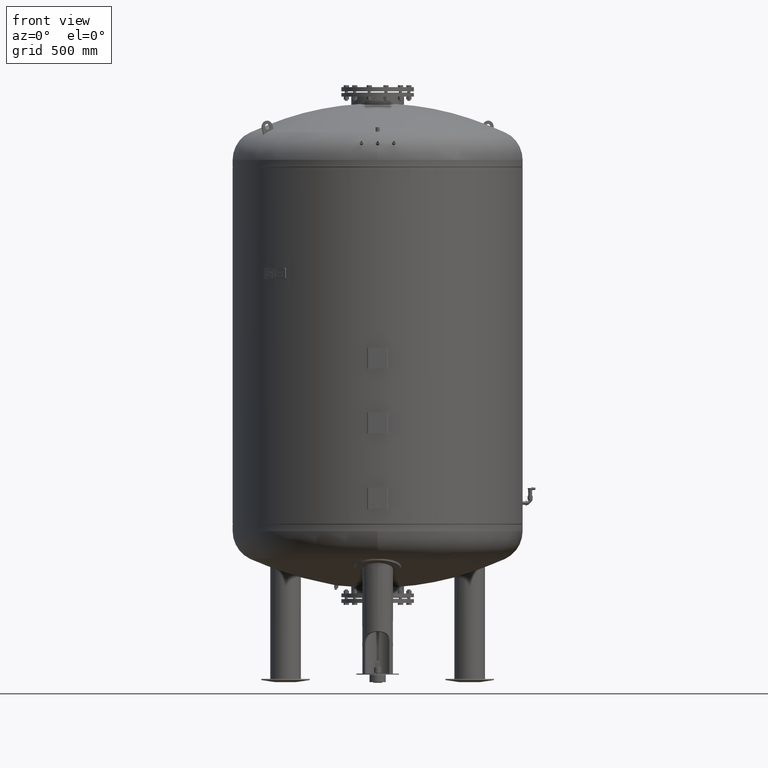
[diagram: clean part render]
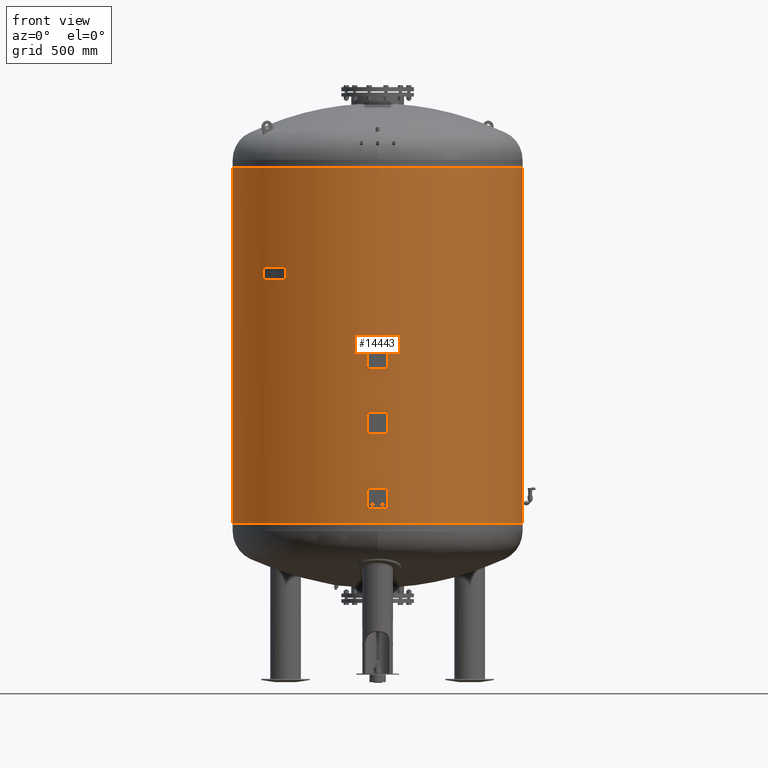
[diagram: same view with one face highlighted and labeled with its STEP entity id]
A machine part, front view. The second image highlights one B-rep face of the part: STEP entity #14443.
In plain terms, the highlighted cylindrical surface (partial cylindrical patch) has radius 750 mm, axis along (0, 0, 1).
Its self-contained STEP definition (entity closure, byte-faithful):
#14402=CARTESIAN_POINT('',(8.316550E-015,0.0,2212.250000000000000));
#14403=DIRECTION('',(1.828818E-017,0.0,1.0));
#14404=DIRECTION('',(1.0,0.0,0.0));
#14405=AXIS2_PLACEMENT_3D('',#14402,#14403,#14404);
#14406=CYLINDRICAL_SURFACE('',#14405,750.000000000000570);
#14407=CARTESIAN_POINT('',(750.000000000000910,0.0,2667.0));
#14408=VERTEX_POINT('',#14407);
#14409=CARTESIAN_POINT('',(749.999999999999890,0.0,822.0));
#14410=VERTEX_POINT('',#14409);
#14411=CARTESIAN_POINT('',(750.000000000000910,0.0,2667.0));
#14412=DIRECTION('',(0.0,0.0,-1.0));
#14413=VECTOR('',#14412,1845.0);
#14414=LINE('',#14411,#14413);
#14415=EDGE_CURVE('',#14408,#14410,#14414,.T.);
#14416=ORIENTED_EDGE('',*,*,#14415,.F.);
#14417=CARTESIAN_POINT('',(-750.000000000000570,-9.184548E-014,2667.0));
#14418=VERTEX_POINT('',#14417);
#14419=CARTESIAN_POINT('',(1.663310E-014,0.0,2667.0));
#14420=DIRECTION('',(0.0,0.0,1.0));
#14421=DIRECTION('',(1.0,0.0,0.0));
#14422=AXIS2_PLACEMENT_3D('',#14419,#14420,#14421);
#14423=CIRCLE('',#14422,750.000000000000910);
#14424=EDGE_CURVE('',#14418,#14408,#14423,.T.);
#14425=ORIENTED_EDGE('',*,*,#14424,.F.);
#14426=CARTESIAN_POINT('',(-749.999999999999890,-9.184548E-014,822.000000000000110));
#14427=VERTEX_POINT('',#14426);
#14428=CARTESIAN_POINT('',(-750.000000000000570,-9.184548E-014,2667.0));
#14429=DIRECTION('',(0.0,0.0,-1.0));
#14430=VECTOR('',#14429,1845.0);
#14431=LINE('',#14428,#14430);
#14432=EDGE_CURVE('',#14418,#14427,#14431,.T.);
#14433=ORIENTED_EDGE('',*,*,#14432,.T.);
#14434=CARTESIAN_POINT('',(-1.663310E-014,0.0,822.000000000000110));
#14435=DIRECTION('',(0.0,0.0,1.0));
#14436=DIRECTION('',(1.0,0.0,0.0));
#14437=AXIS2_PLACEMENT_3D('',#14434,#14435,#14436);
#14438=CIRCLE('',#14437,749.999999999999890);
#14439=EDGE_CURVE('',#14427,#14410,#14438,.T.);
#14440=ORIENTED_EDGE('',*,*,#14439,.T.);
#14441=EDGE_LOOP('',(#14416,#14425,#14433,#14440));
#14442=FACE_OUTER_BOUND('',#14441,.T.);
#14443=ADVANCED_FACE('',(#14442),#14406,.T.);